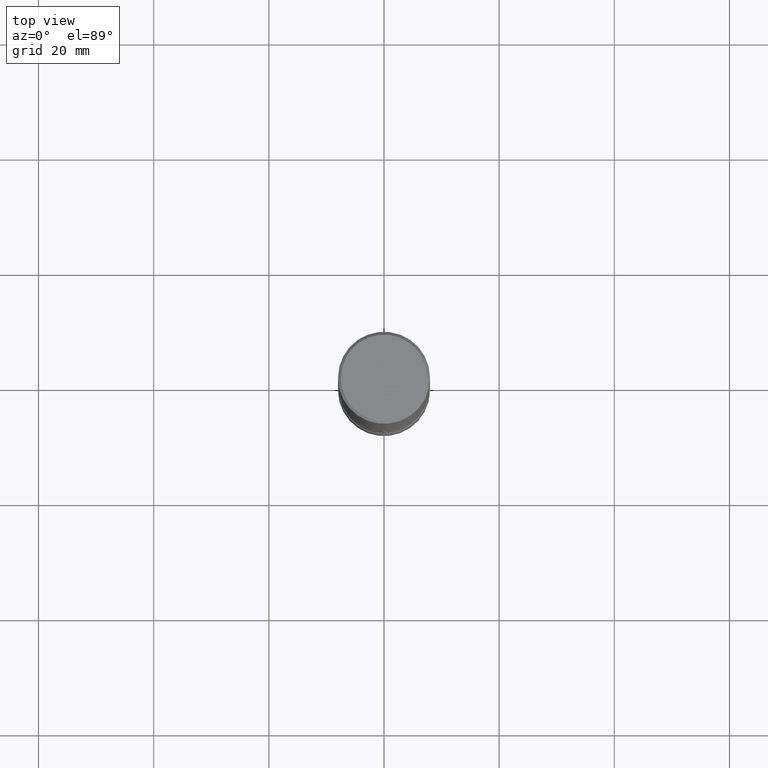
[diagram: clean part render]
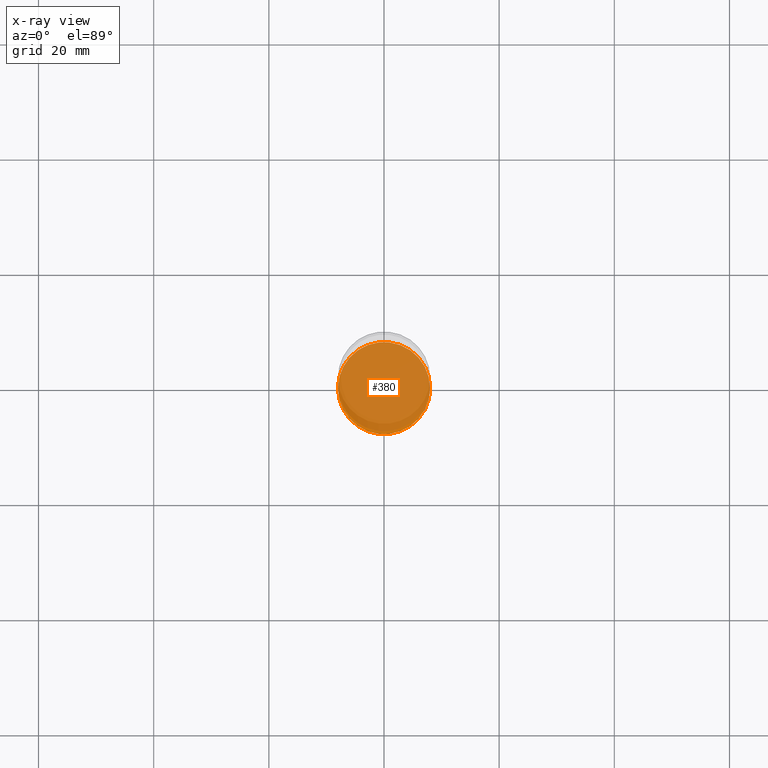
[diagram: x-ray — body ghosted, one internal face saturated and labeled with its STEP entity id]
A machine part, top view, then the same camera in x-ray: the body is ghosted and one INTERNAL B-rep face — a face not visible from any outside direction — is saturated and labeled: STEP entity #380.
In plain terms, the highlighted planar face has unit normal (0, -0, -1).
Its self-contained STEP definition (entity closure, byte-faithful):
#5 = EDGE_CURVE ( 'NONE', #423, #129, #125, .T. ) ;
#38 = FACE_OUTER_BOUND ( 'NONE', #489, .T. ) ;
#77 = CARTESIAN_POINT ( 'NONE',  ( 0.3149500000000001743, -1.663271880198097216E-14, -4.133899999999999686 ) ) ;
#110 = AXIS2_PLACEMENT_3D ( 'NONE', #167, #464, #422 ) ;
#125 = CIRCLE ( 'NONE', #110, 0.3149500000000001743 ) ;
#128 = CARTESIAN_POINT ( 'NONE',  ( -0.3149500000000001743, -1.340520407020945227E-14, -4.133899999999999686 ) ) ;
#129 = VERTEX_POINT ( 'NONE', #77 ) ;
#163 = AXIS2_PLACEMENT_3D ( 'NONE', #169, #259, #209 ) ;
#167 = CARTESIAN_POINT ( 'NONE',  ( 1.010932349788873450E-28, -1.443343470664368071E-14, -4.133899999999999686 ) ) ;
#169 = CARTESIAN_POINT ( 'NONE',  ( 1.010932349788873450E-28, -1.443343470664368071E-14, -4.133899999999999686 ) ) ;
#209 = DIRECTION ( 'NONE',  ( -1.000000000000000000, 6.982962677686265922E-15, -4.876176775795935793E-29 ) ) ;
#259 = DIRECTION ( 'NONE',  ( 2.438088387897960049E-29, -3.491481338843145188E-15, -1.000000000000000000 ) ) ;
#343 = AXIS2_PLACEMENT_3D ( 'NONE', #515, #391, #557 ) ;
#380 = ADVANCED_FACE ( 'NONE', ( #38 ), #558, .F. ) ;
#391 = DIRECTION ( 'NONE',  ( -2.445468806185136597E-29, 3.491481338843145583E-15, 1.000000000000000000 ) ) ;
#422 = DIRECTION ( 'NONE',  ( 1.000000000000000000, -6.982962677686265922E-15, 0.000000000000000000 ) ) ;
#423 = VERTEX_POINT ( 'NONE', #128 ) ;
#449 = ORIENTED_EDGE ( 'NONE', *, *, #5, .T. ) ;
#464 = DIRECTION ( 'NONE',  ( -2.445468806185136597E-29, 3.491481338843145583E-15, 1.000000000000000000 ) ) ;
#489 = EDGE_LOOP ( 'NONE', ( #528, #449 ) ) ;
#512 = CIRCLE ( 'NONE', #343, 0.3149500000000001743 ) ;
#515 = CARTESIAN_POINT ( 'NONE',  ( 1.010932349788873450E-28, -1.443343470664368071E-14, -4.133899999999999686 ) ) ;
#527 = EDGE_CURVE ( 'NONE', #129, #423, #512, .T. ) ;
#528 = ORIENTED_EDGE ( 'NONE', *, *, #527, .T. ) ;
#557 = DIRECTION ( 'NONE',  ( 1.000000000000000000, -6.982962677686265922E-15, 0.000000000000000000 ) ) ;
#558 = PLANE ( 'NONE',  #163 ) ;